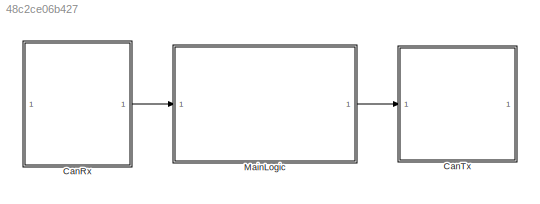
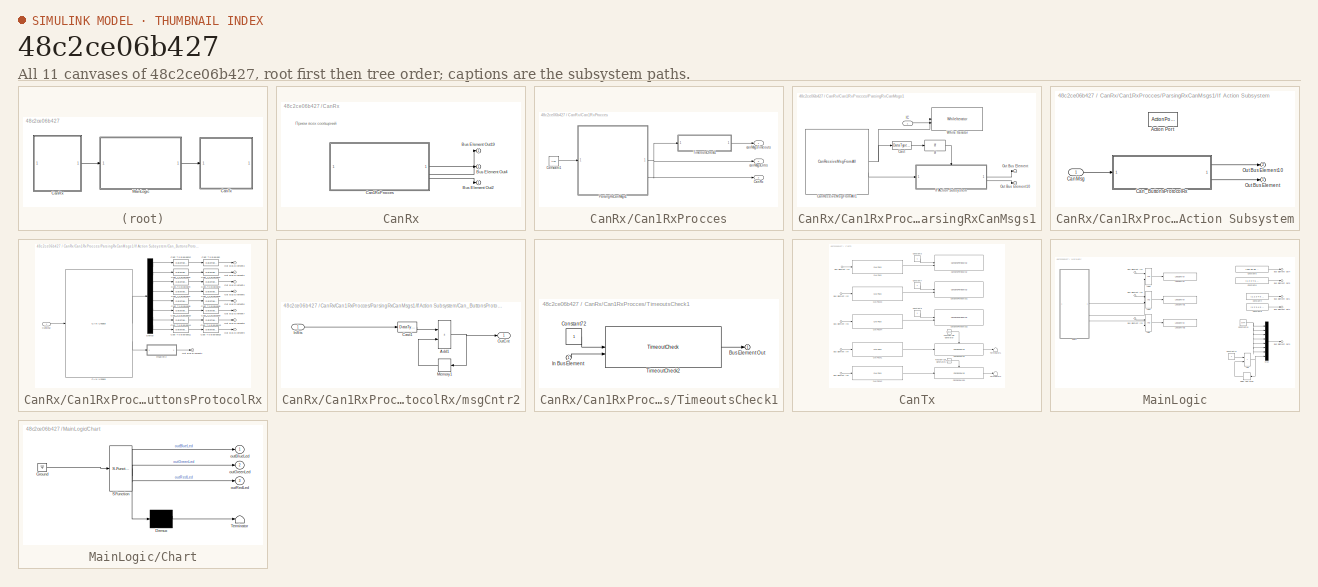
[diagram: thumbnail index - all 11 canvases of the model, root first then tree order]
MODEL slx_48c2ce06b427
KIND model
CONFIG AbsTol = auto
CONFIG EnableMultiTasking = off
CONFIG FixedStep = 0.01
CONFIG MaxStep = auto
CONFIG MinStep = auto
CONFIG RelTol = 1e-3
CONFIG SampleTimeConstraint = Unconstrained
CONFIG SolverName = FixedStepDiscrete
CONFIG StartTime = 0.0
CONFIG StopTime = 10.0
WORKSPACE source: mxarray member
WORKSPACE BlueSwitch: Simulink.Parameter (value not decoded)
WORKSPACE GreenSwitch: Simulink.Parameter (value not decoded)
WORKSPACE RedSwitch: Simulink.Parameter (value not decoded)
BLOCK [SubSystem] CanRx
  SystemSampleTime = 0.01
  TreatAsAtomicUnit = on
BLOCK [Outport] CanRx/Bus Element Out19
BLOCK [Outport] CanRx/Bus Element Out2
BLOCK [Outport] CanRx/Bus Element Out4
BLOCK [SubSystem] CanRx/Can1RxProcces
BLOCK [Outport] CanRx/Can1RxProcces/CanRx
  Port = 2
BLOCK [Constant] CanRx/Can1RxProcces/Constant1
  OutDataTypeStr = boolean
  Value = true
BLOCK [SubSystem] CanRx/Can1RxProcces/ParsingRxCanMsgs1
  TreatAsAtomicUnit = on
BLOCK [DataTypeConversion] CanRx/Can1RxProcces/ParsingRxCanMsgs1/Cast
  OutDataTypeStr = uint8
  RndMeth = Simplest
  SaturateOnIntegerOverflow = off
BLOCK [Inport] CanRx/Can1RxProcces/ParsingRxCanMsgs1/IC
BLOCK [If] CanRx/Can1RxProcces/ParsingRxCanMsgs1/If
  ShowElse = off
BLOCK [SubSystem] CanRx/Can1RxProcces/ParsingRxCanMsgs1/If Action Subsystem
  TreatAsAtomicUnit = on
BLOCK [ActionPort] CanRx/Can1RxProcces/ParsingRxCanMsgs1/If Action Subsystem/Action Port
  ActionPortLabel = if(u1 > 0)
BLOCK [Inport] CanRx/Can1RxProcces/ParsingRxCanMsgs1/If Action Subsystem/CanMsg
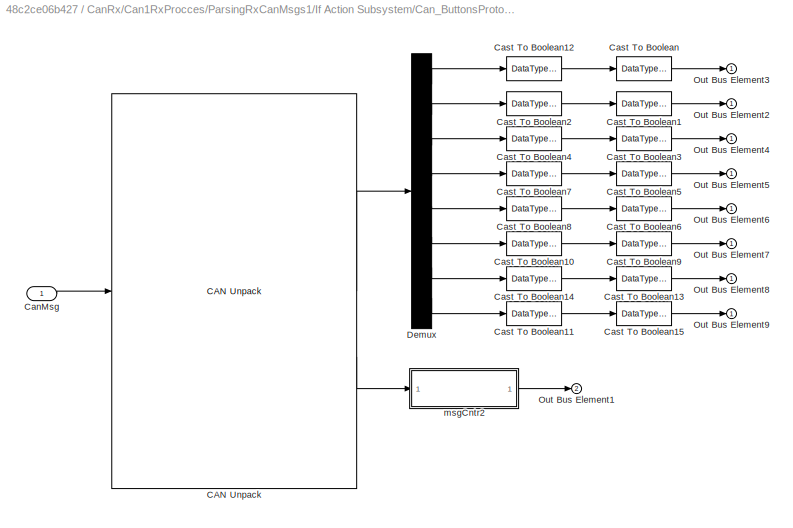
BLOCK [SubSystem] CanRx/Can1RxProcces/ParsingRxCanMsgs1/If Action Subsystem/Can_ButtonsProtocolRx
BLOCK [Reference] CanRx/Can1RxProcces/ParsingRxCanMsgs1/If Action Subsystem/Can_ButtonsProtocolRx/CAN Unpack  REF=canmsglib/CAN Unpack
  LibrarySourceBlock = embeddedtargetslib/Host Communication/CAN Unpack
  SourceBlock = canmsglib/CAN Unpack
  SourceType = CAN Unpack
BLOCK [Inport] CanRx/Can1RxProcces/ParsingRxCanMsgs1/If Action Subsystem/Can_ButtonsProtocolRx/CanMsg
BLOCK [DataTypeConversion] CanRx/Can1RxProcces/ParsingRxCanMsgs1/If Action Subsystem/Can_ButtonsProtocolRx/Cast To Boolean
  OutDataTypeStr = boolean
  RndMeth = Simplest
  SaturateOnIntegerOverflow = off
BLOCK [DataTypeConversion] CanRx/Can1RxProcces/ParsingRxCanMsgs1/If Action Subsystem/Can_ButtonsProtocolRx/Cast To Boolean1
  OutDataTypeStr = boolean
  RndMeth = Simplest
  SaturateOnIntegerOverflow = off
BLOCK [DataTypeConversion] CanRx/Can1RxProcces/ParsingRxCanMsgs1/If Action Subsystem/Can_ButtonsProtocolRx/Cast To Boolean10
  OutDataTypeStr = uint8
  RndMeth = Simplest
  SaturateOnIntegerOverflow = off
BLOCK [DataTypeConversion] CanRx/Can1RxProcces/ParsingRxCanMsgs1/If Action Subsystem/Can_ButtonsProtocolRx/Cast To Boolean11
  OutDataTypeStr = uint8
  RndMeth = Simplest
  SaturateOnIntegerOverflow = off
BLOCK [DataTypeConversion] CanRx/Can1RxProcces/ParsingRxCanMsgs1/If Action Subsystem/Can_ButtonsProtocolRx/Cast To Boolean12
  OutDataTypeStr = uint8
  RndMeth = Simplest
  SaturateOnIntegerOverflow = off
BLOCK [DataTypeConversion] CanRx/Can1RxProcces/ParsingRxCanMsgs1/If Action Subsystem/Can_ButtonsProtocolRx/Cast To Boolean13
  OutDataTypeStr = boolean
  RndMeth = Simplest
  SaturateOnIntegerOverflow = off
BLOCK [DataTypeConversion] CanRx/Can1RxProcces/ParsingRxCanMsgs1/If Action Subsystem/Can_ButtonsProtocolRx/Cast To Boolean14
  OutDataTypeStr = uint8
  RndMeth = Simplest
  SaturateOnIntegerOverflow = off
BLOCK [DataTypeConversion] CanRx/Can1RxProcces/ParsingRxCanMsgs1/If Action Subsystem/Can_ButtonsProtocolRx/Cast To Boolean15
  OutDataTypeStr = boolean
  RndMeth = Simplest
  SaturateOnIntegerOverflow = off
BLOCK [DataTypeConversion] CanRx/Can1RxProcces/ParsingRxCanMsgs1/If Action Subsystem/Can_ButtonsProtocolRx/Cast To Boolean2
  OutDataTypeStr = uint8
  RndMeth = Simplest
  SaturateOnIntegerOverflow = off
BLOCK [DataTypeConversion] CanRx/Can1RxProcces/ParsingRxCanMsgs1/If Action Subsystem/Can_ButtonsProtocolRx/Cast To Boolean3
  OutDataTypeStr = boolean
  RndMeth = Simplest
  SaturateOnIntegerOverflow = off
BLOCK [DataTypeConversion] CanRx/Can1RxProcces/ParsingRxCanMsgs1/If Action Subsystem/Can_ButtonsProtocolRx/Cast To Boolean4
  OutDataTypeStr = uint8
  RndMeth = Simplest
  SaturateOnIntegerOverflow = off
BLOCK [DataTypeConversion] CanRx/Can1RxProcces/ParsingRxCanMsgs1/If Action Subsystem/Can_ButtonsProtocolRx/Cast To Boolean5
  OutDataTypeStr = boolean
  RndMeth = Simplest
  SaturateOnIntegerOverflow = off
BLOCK [DataTypeConversion] CanRx/Can1RxProcces/ParsingRxCanMsgs1/If Action Subsystem/Can_ButtonsProtocolRx/Cast To Boolean6
  OutDataTypeStr = boolean
  RndMeth = Simplest
  SaturateOnIntegerOverflow = off
BLOCK [DataTypeConversion] CanRx/Can1RxProcces/ParsingRxCanMsgs1/If Action Subsystem/Can_ButtonsProtocolRx/Cast To Boolean7
  OutDataTypeStr = uint8
  RndMeth = Simplest
  SaturateOnIntegerOverflow = off
BLOCK [DataTypeConversion] CanRx/Can1RxProcces/ParsingRxCanMsgs1/If Action Subsystem/Can_ButtonsProtocolRx/Cast To Boolean8
  OutDataTypeStr = uint8
  RndMeth = Simplest
  SaturateOnIntegerOverflow = off
BLOCK [DataTypeConversion] CanRx/Can1RxProcces/ParsingRxCanMsgs1/If Action Subsystem/Can_ButtonsProtocolRx/Cast To Boolean9
  OutDataTypeStr = boolean
  RndMeth = Simplest
  SaturateOnIntegerOverflow = off
BLOCK [Demux] CanRx/Can1RxProcces/ParsingRxCanMsgs1/If Action Subsystem/Can_ButtonsProtocolRx/Demux
  Outputs = 8
BLOCK [Outport] CanRx/Can1RxProcces/ParsingRxCanMsgs1/If Action Subsystem/Can_ButtonsProtocolRx/Out Bus Element1
  Port = 2
BLOCK [Outport] CanRx/Can1RxProcces/ParsingRxCanMsgs1/If Action Subsystem/Can_ButtonsProtocolRx/Out Bus Element2
BLOCK [Outport] CanRx/Can1RxProcces/ParsingRxCanMsgs1/If Action Subsystem/Can_ButtonsProtocolRx/Out Bus Element3
BLOCK [Outport] CanRx/Can1RxProcces/ParsingRxCanMsgs1/If Action Subsystem/Can_ButtonsProtocolRx/Out Bus Element4
BLOCK [Outport] CanRx/Can1RxProcces/ParsingRxCanMsgs1/If Action Subsystem/Can_ButtonsProtocolRx/Out Bus Element5
BLOCK [Outport] CanRx/Can1RxProcces/ParsingRxCanMsgs1/If Action Subsystem/Can_ButtonsProtocolRx/Out Bus Element6
BLOCK [Outport] CanRx/Can1RxProcces/ParsingRxCanMsgs1/If Action Subsystem/Can_ButtonsProtocolRx/Out Bus Element7
BLOCK [Outport] CanRx/Can1RxProcces/ParsingRxCanMsgs1/If Action Subsystem/Can_ButtonsProtocolRx/Out Bus Element8
BLOCK [Outport] CanRx/Can1RxProcces/ParsingRxCanMsgs1/If Action Subsystem/Can_ButtonsProtocolRx/Out Bus Element9
BLOCK [SubSystem] CanRx/Can1RxProcces/ParsingRxCanMsgs1/If Action Subsystem/Can_ButtonsProtocolRx/msgCntr2
BLOCK [Sum] CanRx/Can1RxProcces/ParsingRxCanMsgs1/If Action Subsystem/Can_ButtonsProtocolRx/msgCntr2/Add1
  AccumDataTypeStr = uint32
  IconShape = rectangular
  OutDataTypeStr = uint32
  RndMeth = Simplest
BLOCK [DataTypeConversion] CanRx/Can1RxProcces/ParsingRxCanMsgs1/If Action Subsystem/Can_ButtonsProtocolRx/msgCntr2/Cast1
  OutDataTypeStr = uint32
  RndMeth = Simplest
  SaturateOnIntegerOverflow = off
BLOCK [Inport] CanRx/Can1RxProcces/ParsingRxCanMsgs1/If Action Subsystem/Can_ButtonsProtocolRx/msgCntr2/InSts
BLOCK [Memory] CanRx/Can1RxProcces/ParsingRxCanMsgs1/If Action Subsystem/Can_ButtonsProtocolRx/msgCntr2/Memory1
  InheritSampleTime = on
  NameLocation = top
BLOCK [Outport] CanRx/Can1RxProcces/ParsingRxCanMsgs1/If Action Subsystem/Can_ButtonsProtocolRx/msgCntr2/OutCnt
BLOCK [Outport] CanRx/Can1RxProcces/ParsingRxCanMsgs1/If Action Subsystem/Out Bus Element
BLOCK [Outport] CanRx/Can1RxProcces/ParsingRxCanMsgs1/If Action Subsystem/Out Bus Element10
  Port = 2
BLOCK [Outport] CanRx/Can1RxProcces/ParsingRxCanMsgs1/Out Bus Element
BLOCK [Outport] CanRx/Can1RxProcces/ParsingRxCanMsgs1/Out Bus Element10
  Port = 2
BLOCK [WhileIterator] CanRx/Can1RxProcces/ParsingRxCanMsgs1/While Iterator
  MaxIters = 50
BLOCK [Reference] CanRx/Can1RxProcces/ParsingRxCanMsgs1/СanReceiveMsgFromAll1  REF=can_control/СanReceiveMsgFromAll  (lib defined in slx_4efd21c621b9)
  SourceBlock = can_control/СanReceiveMsgFromAll
  SourceType = Получить сообщений из кольцевого буффера CAN
BLOCK [SubSystem] CanRx/Can1RxProcces/TimeoutsCheck1
BLOCK [Outport] CanRx/Can1RxProcces/TimeoutsCheck1/Bus Element Out
BLOCK [Constant] CanRx/Can1RxProcces/TimeoutsCheck1/Constant72
  OutDataTypeStr = boolean
BLOCK [Inport] CanRx/Can1RxProcces/TimeoutsCheck1/In Bus Element
BLOCK [Reference] CanRx/Can1RxProcces/TimeoutsCheck1/TimeoutCheck2  REF=can_control/TimeoutCheck  (lib defined in slx_4efd21c621b9)
  SourceBlock = can_control/TimeoutCheck
  SourceType = Check TimeOut
BLOCK [Outport] CanRx/Can1RxProcces/canMsgsCntrs
  Port = 3
BLOCK [Outport] CanRx/Can1RxProcces/canMsgsTimeouts
BLOCK [SubSystem] CanTx
  TreatAsAtomicUnit = on
BLOCK [Inport] CanTx/Bus Element In1
BLOCK [Inport] CanTx/Bus Element In2
BLOCK [Inport] CanTx/Bus Element In3
BLOCK [Inport] CanTx/Bus Element In4
BLOCK [Inport] CanTx/Bus Element In5
BLOCK [Reference] CanTx/CAN Pack  REF=canmsglib/CAN Pack
  LibrarySourceBlock = embeddedtargetslib/Host Communication/CAN Pack
  SourceBlock = canmsglib/CAN Pack
  SourceType = CAN Pack
BLOCK [Reference] CanTx/CAN Pack1  REF=canmsglib/CAN Pack
  LibrarySourceBlock = embeddedtargetslib/Host Communication/CAN Pack
  SourceBlock = canmsglib/CAN Pack
  SourceType = CAN Pack
BLOCK [Reference] CanTx/CAN Pack2  REF=canmsglib/CAN Pack
  LibrarySourceBlock = embeddedtargetslib/Host Communication/CAN Pack
  SourceBlock = canmsglib/CAN Pack
  SourceType = CAN Pack
BLOCK [Reference] CanTx/CAN Pack3  REF=canmsglib/CAN Pack
  LibrarySourceBlock = embeddedtargetslib/Host Communication/CAN Pack
  SourceBlock = canmsglib/CAN Pack
  SourceType = CAN Pack
BLOCK [Reference] CanTx/CAN Pack4  REF=canmsglib/CAN Pack
  LibrarySourceBlock = embeddedtargetslib/Host Communication/CAN Pack
  SourceBlock = canmsglib/CAN Pack
  SourceType = CAN Pack
BLOCK [Constant] CanTx/Constant3
  OutDataTypeStr = boolean
BLOCK [Constant] CanTx/Constant7
  OutDataTypeStr = boolean
BLOCK [Constant] CanTx/Constant9
  OutDataTypeStr = boolean
BLOCK [Reference] CanTx/Function-Call Generator  REF=simulink/Ports &
Subsystems/Function-Call
Generator
  SourceBlock = simulink/Ports &\nSubsystems/Function-Call\nGenerator
  SourceType = Function-Call Generator
BLOCK [Reference] CanTx/Function-Call Generator1  REF=simulink/Ports &
Subsystems/Function-Call
Generator
  SourceBlock = simulink/Ports &\nSubsystems/Function-Call\nGenerator
  SourceType = Function-Call Generator
BLOCK [Terminator] CanTx/Terminator1
BLOCK [Terminator] CanTx/Terminator2
BLOCK [Reference] CanTx/СanSendMsg  REF=can_control/СanSendMsg  (lib defined in slx_4efd21c621b9)
  SourceBlock = can_control/СanSendMsg
  SourceType = Отправка сообщения CAN
BLOCK [Reference] CanTx/СanSendMsg1  REF=can_control/СanSendMsg  (lib defined in slx_4efd21c621b9)
  SourceBlock = can_control/СanSendMsg
  SourceType = Отправка сообщения CAN
BLOCK [Reference] CanTx/СanSendPeriodMsg  REF=can_control/СanSendPeriodMsg  (lib defined in slx_4efd21c621b9)
  SourceBlock = can_control/СanSendPeriodMsg
  SourceType = CanSend
BLOCK [Reference] CanTx/СanSendPeriodMsg1  REF=can_control/СanSendPeriodMsg  (lib defined in slx_4efd21c621b9)
  SourceBlock = can_control/СanSendPeriodMsg
  SourceType = CanSend
BLOCK [Reference] CanTx/СanSendPeriodMsg2  REF=can_control/СanSendPeriodMsg  (lib defined in slx_4efd21c621b9)
  SourceBlock = can_control/СanSendPeriodMsg
  SourceType = CanSend
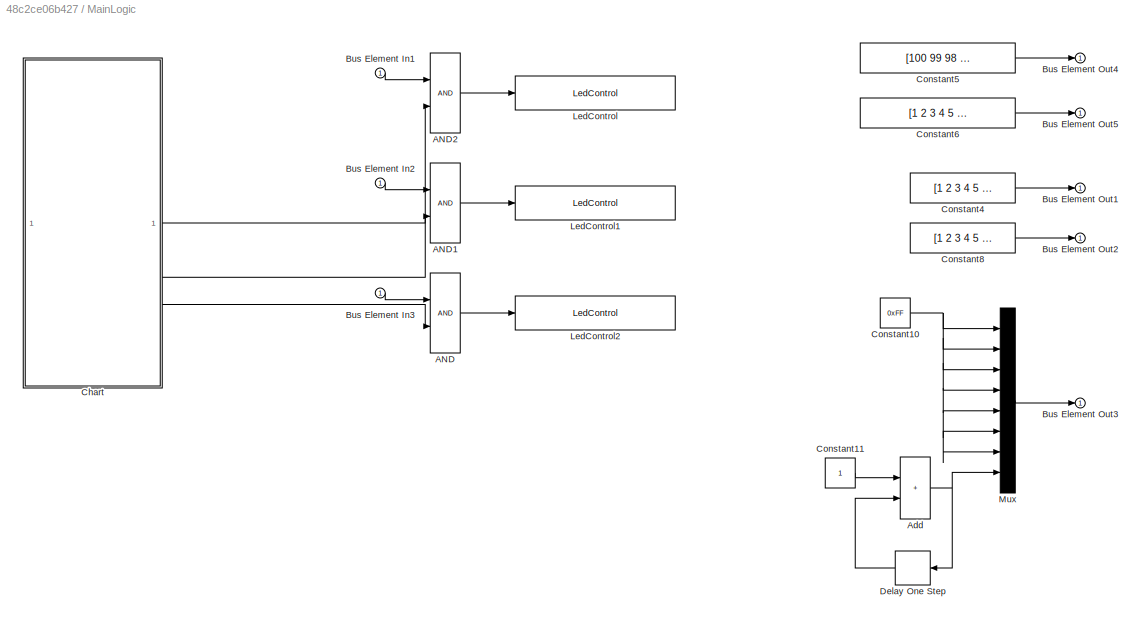
BLOCK [SubSystem] MainLogic
  RTWSystemCode = Inline
  TreatAsAtomicUnit = on
BLOCK [Logic] MainLogic/AND
  AllPortsSameDT = off
  OutDataTypeStr = boolean
BLOCK [Logic] MainLogic/AND1
  AllPortsSameDT = off
  OutDataTypeStr = boolean
BLOCK [Logic] MainLogic/AND2
  AllPortsSameDT = off
  OutDataTypeStr = boolean
BLOCK [Sum] MainLogic/Add
  AccumDataTypeStr = uint8
  IconShape = rectangular
  RndMeth = Simplest
BLOCK [Inport] MainLogic/Bus Element In1
BLOCK [Inport] MainLogic/Bus Element In2
BLOCK [Inport] MainLogic/Bus Element In3
BLOCK [Outport] MainLogic/Bus Element Out1
BLOCK [Outport] MainLogic/Bus Element Out2
BLOCK [Outport] MainLogic/Bus Element Out3
BLOCK [Outport] MainLogic/Bus Element Out4
BLOCK [Outport] MainLogic/Bus Element Out5
BLOCK [SubSystem] MainLogic/Chart
  ErrorFcn = Stateflow.Translate.translate
  PermitHierarchicalResolution = ExplicitOnly
  SFBlockType = Chart
  TreatAsAtomicUnit = on
BLOCK [Demux] MainLogic/Chart/ Demux 
  Outputs = 1
BLOCK [Ground] MainLogic/Chart/ Ground 
BLOCK [S-Function] MainLogic/Chart/ SFunction 
  EnableBusSupport = on
  FunctionName = sf_sfun
  PortCounts = [1 4]
  SFcnIsStateOwnerBlock = off
  SFunctionDeploymentMode = off
  Tag = Stateflow S-Function 3
BLOCK [Terminator] MainLogic/Chart/ Terminator 
BLOCK [Outport] MainLogic/Chart/outBlueLed
BLOCK [Outport] MainLogic/Chart/outGreenLed
  Port = 2
BLOCK [Outport] MainLogic/Chart/outRedLed
  Port = 3
BLOCK [Constant] MainLogic/Constant10
  OutDataTypeStr = uint8
  Value = 0xFF
BLOCK [Constant] MainLogic/Constant11
  OutDataTypeStr = uint8
BLOCK [Constant] MainLogic/Constant4
  OutDataTypeStr = uint8
  Value = [1 2 3 4 5 6 7 8]
BLOCK [Constant] MainLogic/Constant5
  OutDataTypeStr = uint8
  Value = [100 99 98 97 96 95 94 93]
BLOCK [Constant] MainLogic/Constant6
  OutDataTypeStr = uint8
  Value = [1 2 3 4 5 6 7 8]
BLOCK [Constant] MainLogic/Constant8
  OutDataTypeStr = uint8
  Value = [1 2 3 4 5 6 7 8]
BLOCK [Delay] MainLogic/Delay One Step
  DelayLength = 1
  InitialCondition = 0
  InputPortMap = u0
  NameLocation = top
BLOCK [Reference] MainLogic/LedControl  REF=led_control/LedControl  (lib defined in slx_23a28a6f2ab0)
  SourceBlock = led_control/LedControl
BLOCK [Reference] MainLogic/LedControl1  REF=led_control/LedControl  (lib defined in slx_23a28a6f2ab0)
  SourceBlock = led_control/LedControl
BLOCK [Reference] MainLogic/LedControl2  REF=led_control/LedControl  (lib defined in slx_23a28a6f2ab0)
  SourceBlock = led_control/LedControl
BLOCK [Mux] MainLogic/Mux
  DisplayOption = bar
  Inputs = 8
ANNOTATION CanRx: Прием всех сообщений
LINE CanRx/Can1RxProcces/Constant1:1 -> CanRx/Can1RxProcces/ParsingRxCanMsgs1:1
LINE CanRx/Can1RxProcces/ParsingRxCanMsgs1/Cast:1 -> CanRx/Can1RxProcces/ParsingRxCanMsgs1/If:1
LINE CanRx/Can1RxProcces/ParsingRxCanMsgs1/IC:1 -> CanRx/Can1RxProcces/ParsingRxCanMsgs1/While Iterator:2
LINE CanRx/Can1RxProcces/ParsingRxCanMsgs1/If Action Subsystem/CanMsg:1 -> CanRx/Can1RxProcces/ParsingRxCanMsgs1/If Action Subsystem/Can_ButtonsProtocolRx:1
LINE CanRx/Can1RxProcces/ParsingRxCanMsgs1/If Action Subsystem/Can_ButtonsProtocolRx/CAN Unpack:1 -> CanRx/Can1RxProcces/ParsingRxCanMsgs1/If Action Subsystem/Can_ButtonsProtocolRx/Demux:1
LINE CanRx/Can1RxProcces/ParsingRxCanMsgs1/If Action Subsystem/Can_ButtonsProtocolRx/CAN Unpack:2 -> CanRx/Can1RxProcces/ParsingRxCanMsgs1/If Action Subsystem/Can_ButtonsProtocolRx/msgCntr2:1
LINE CanRx/Can1RxProcces/ParsingRxCanMsgs1/If Action Subsystem/Can_ButtonsProtocolRx/CanMsg:1 -> CanRx/Can1RxProcces/ParsingRxCanMsgs1/If Action Subsystem/Can_ButtonsProtocolRx/CAN Unpack:1
LINE CanRx/Can1RxProcces/ParsingRxCanMsgs1/If Action Subsystem/Can_ButtonsProtocolRx/Cast To Boolean10:1 -> CanRx/Can1RxProcces/ParsingRxCanMsgs1/If Action Subsystem/Can_ButtonsProtocolRx/Cast To Boolean9:1
LINE CanRx/Can1RxProcces/ParsingRxCanMsgs1/If Action Subsystem/Can_ButtonsProtocolRx/Cast To Boolean11:1 -> CanRx/Can1RxProcces/ParsingRxCanMsgs1/If Action Subsystem/Can_ButtonsProtocolRx/Cast To Boolean15:1
LINE CanRx/Can1RxProcces/ParsingRxCanMsgs1/If Action Subsystem/Can_ButtonsProtocolRx/Cast To Boolean12:1 -> CanRx/Can1RxProcces/ParsingRxCanMsgs1/If Action Subsystem/Can_ButtonsProtocolRx/Cast To Boolean:1
LINE CanRx/Can1RxProcces/ParsingRxCanMsgs1/If Action Subsystem/Can_ButtonsProtocolRx/Cast To Boolean13:1 -> CanRx/Can1RxProcces/ParsingRxCanMsgs1/If Action Subsystem/Can_ButtonsProtocolRx/Out Bus Element8:1
LINE CanRx/Can1RxProcces/ParsingRxCanMsgs1/If Action Subsystem/Can_ButtonsProtocolRx/Cast To Boolean14:1 -> CanRx/Can1RxProcces/ParsingRxCanMsgs1/If Action Subsystem/Can_ButtonsProtocolRx/Cast To Boolean13:1
LINE CanRx/Can1RxProcces/ParsingRxCanMsgs1/If Action Subsystem/Can_ButtonsProtocolRx/Cast To Boolean15:1 -> CanRx/Can1RxProcces/ParsingRxCanMsgs1/If Action Subsystem/Can_ButtonsProtocolRx/Out Bus Element9:1
LINE CanRx/Can1RxProcces/ParsingRxCanMsgs1/If Action Subsystem/Can_ButtonsProtocolRx/Cast To Boolean1:1 -> CanRx/Can1RxProcces/ParsingRxCanMsgs1/If Action Subsystem/Can_ButtonsProtocolRx/Out Bus Element2:1
LINE CanRx/Can1RxProcces/ParsingRxCanMsgs1/If Action Subsystem/Can_ButtonsProtocolRx/Cast To Boolean2:1 -> CanRx/Can1RxProcces/ParsingRxCanMsgs1/If Action Subsystem/Can_ButtonsProtocolRx/Cast To Boolean1:1
LINE CanRx/Can1RxProcces/ParsingRxCanMsgs1/If Action Subsystem/Can_ButtonsProtocolRx/Cast To Boolean3:1 -> CanRx/Can1RxProcces/ParsingRxCanMsgs1/If Action Subsystem/Can_ButtonsProtocolRx/Out Bus Element4:1
LINE CanRx/Can1RxProcces/ParsingRxCanMsgs1/If Action Subsystem/Can_ButtonsProtocolRx/Cast To Boolean4:1 -> CanRx/Can1RxProcces/ParsingRxCanMsgs1/If Action Subsystem/Can_ButtonsProtocolRx/Cast To Boolean3:1
LINE CanRx/Can1RxProcces/ParsingRxCanMsgs1/If Action Subsystem/Can_ButtonsProtocolRx/Cast To Boolean5:1 -> CanRx/Can1RxProcces/ParsingRxCanMsgs1/If Action Subsystem/Can_ButtonsProtocolRx/Out Bus Element5:1
LINE CanRx/Can1RxProcces/ParsingRxCanMsgs1/If Action Subsystem/Can_ButtonsProtocolRx/Cast To Boolean6:1 -> CanRx/Can1RxProcces/ParsingRxCanMsgs1/If Action Subsystem/Can_ButtonsProtocolRx/Out Bus Element6:1
LINE CanRx/Can1RxProcces/ParsingRxCanMsgs1/If Action Subsystem/Can_ButtonsProtocolRx/Cast To Boolean7:1 -> CanRx/Can1RxProcces/ParsingRxCanMsgs1/If Action Subsystem/Can_ButtonsProtocolRx/Cast To Boolean5:1
LINE CanRx/Can1RxProcces/ParsingRxCanMsgs1/If Action Subsystem/Can_ButtonsProtocolRx/Cast To Boolean8:1 -> CanRx/Can1RxProcces/ParsingRxCanMsgs1/If Action Subsystem/Can_ButtonsProtocolRx/Cast To Boolean6:1
LINE CanRx/Can1RxProcces/ParsingRxCanMsgs1/If Action Subsystem/Can_ButtonsProtocolRx/Cast To Boolean9:1 -> CanRx/Can1RxProcces/ParsingRxCanMsgs1/If Action Subsystem/Can_ButtonsProtocolRx/Out Bus Element7:1
LINE CanRx/Can1RxProcces/ParsingRxCanMsgs1/If Action Subsystem/Can_ButtonsProtocolRx/Cast To Boolean:1 -> CanRx/Can1RxProcces/ParsingRxCanMsgs1/If Action Subsystem/Can_ButtonsProtocolRx/Out Bus Element3:1
LINE CanRx/Can1RxProcces/ParsingRxCanMsgs1/If Action Subsystem/Can_ButtonsProtocolRx/Demux:1 -> CanRx/Can1RxProcces/ParsingRxCanMsgs1/If Action Subsystem/Can_ButtonsProtocolRx/Cast To Boolean12:1
LINE CanRx/Can1RxProcces/ParsingRxCanMsgs1/If Action Subsystem/Can_ButtonsProtocolRx/Demux:2 -> CanRx/Can1RxProcces/ParsingRxCanMsgs1/If Action Subsystem/Can_ButtonsProtocolRx/Cast To Boolean2:1
LINE CanRx/Can1RxProcces/ParsingRxCanMsgs1/If Action Subsystem/Can_ButtonsProtocolRx/Demux:3 -> CanRx/Can1RxProcces/ParsingRxCanMsgs1/If Action Subsystem/Can_ButtonsProtocolRx/Cast To Boolean4:1
LINE CanRx/Can1RxProcces/ParsingRxCanMsgs1/If Action Subsystem/Can_ButtonsProtocolRx/Demux:4 -> CanRx/Can1RxProcces/ParsingRxCanMsgs1/If Action Subsystem/Can_ButtonsProtocolRx/Cast To Boolean7:1
LINE CanRx/Can1RxProcces/ParsingRxCanMsgs1/If Action Subsystem/Can_ButtonsProtocolRx/Demux:5 -> CanRx/Can1RxProcces/ParsingRxCanMsgs1/If Action Subsystem/Can_ButtonsProtocolRx/Cast To Boolean8:1
LINE CanRx/Can1RxProcces/ParsingRxCanMsgs1/If Action Subsystem/Can_ButtonsProtocolRx/Demux:6 -> CanRx/Can1RxProcces/ParsingRxCanMsgs1/If Action Subsystem/Can_ButtonsProtocolRx/Cast To Boolean10:1
LINE CanRx/Can1RxProcces/ParsingRxCanMsgs1/If Action Subsystem/Can_ButtonsProtocolRx/Demux:7 -> CanRx/Can1RxProcces/ParsingRxCanMsgs1/If Action Subsystem/Can_ButtonsProtocolRx/Cast To Boolean14:1
LINE CanRx/Can1RxProcces/ParsingRxCanMsgs1/If Action Subsystem/Can_ButtonsProtocolRx/Demux:8 -> CanRx/Can1RxProcces/ParsingRxCanMsgs1/If Action Subsystem/Can_ButtonsProtocolRx/Cast To Boolean11:1
NET CanRx/Can1RxProcces/ParsingRxCanMsgs1/If Action Subsystem/Can_ButtonsProtocolRx/msgCntr2/Add1:1 -> CanRx/Can1RxProcces/ParsingRxCanMsgs1/If Action Subsystem/Can_ButtonsProtocolRx/msgCntr2/Memory1:1, CanRx/Can1RxProcces/ParsingRxCanMsgs1/If Action Subsystem/Can_ButtonsProtocolRx/msgCntr2/OutCnt:1
LINE CanRx/Can1RxProcces/ParsingRxCanMsgs1/If Action Subsystem/Can_ButtonsProtocolRx/msgCntr2/Cast1:1 -> CanRx/Can1RxProcces/ParsingRxCanMsgs1/If Action Subsystem/Can_ButtonsProtocolRx/msgCntr2/Add1:1
LINE CanRx/Can1RxProcces/ParsingRxCanMsgs1/If Action Subsystem/Can_ButtonsProtocolRx/msgCntr2/InSts:1 -> CanRx/Can1RxProcces/ParsingRxCanMsgs1/If Action Subsystem/Can_ButtonsProtocolRx/msgCntr2/Cast1:1
LINE CanRx/Can1RxProcces/ParsingRxCanMsgs1/If Action Subsystem/Can_ButtonsProtocolRx/msgCntr2/Memory1:1 -> CanRx/Can1RxProcces/ParsingRxCanMsgs1/If Action Subsystem/Can_ButtonsProtocolRx/msgCntr2/Add1:2
LINE CanRx/Can1RxProcces/ParsingRxCanMsgs1/If Action Subsystem/Can_ButtonsProtocolRx/msgCntr2:1 -> CanRx/Can1RxProcces/ParsingRxCanMsgs1/If Action Subsystem/Can_ButtonsProtocolRx/Out Bus Element1:1
LINE CanRx/Can1RxProcces/ParsingRxCanMsgs1/If Action Subsystem/Can_ButtonsProtocolRx:1 -> CanRx/Can1RxProcces/ParsingRxCanMsgs1/If Action Subsystem/Out Bus Element10:1
LINE CanRx/Can1RxProcces/ParsingRxCanMsgs1/If Action Subsystem/Can_ButtonsProtocolRx:2 -> CanRx/Can1RxProcces/ParsingRxCanMsgs1/If Action Subsystem/Out Bus Element:1
LINE CanRx/Can1RxProcces/ParsingRxCanMsgs1/If Action Subsystem:1 -> CanRx/Can1RxProcces/ParsingRxCanMsgs1/Out Bus Element:1
LINE CanRx/Can1RxProcces/ParsingRxCanMsgs1/If Action Subsystem:2 -> CanRx/Can1RxProcces/ParsingRxCanMsgs1/Out Bus Element10:1
LINE CanRx/Can1RxProcces/ParsingRxCanMsgs1/If:1 -> CanRx/Can1RxProcces/ParsingRxCanMsgs1/If Action Subsystem:ifaction
NET CanRx/Can1RxProcces/ParsingRxCanMsgs1/СanReceiveMsgFromAll1:1 -> CanRx/Can1RxProcces/ParsingRxCanMsgs1/Cast:1, CanRx/Can1RxProcces/ParsingRxCanMsgs1/While Iterator:1
LINE CanRx/Can1RxProcces/ParsingRxCanMsgs1/СanReceiveMsgFromAll1:2 -> CanRx/Can1RxProcces/ParsingRxCanMsgs1/If Action Subsystem:1
NET CanRx/Can1RxProcces/ParsingRxCanMsgs1:1 -> CanRx/Can1RxProcces/TimeoutsCheck1:1, CanRx/Can1RxProcces/canMsgsCntrs:1
LINE CanRx/Can1RxProcces/ParsingRxCanMsgs1:2 -> CanRx/Can1RxProcces/CanRx:1
LINE CanRx/Can1RxProcces/TimeoutsCheck1/Constant72:1 -> CanRx/Can1RxProcces/TimeoutsCheck1/TimeoutCheck2:1
LINE CanRx/Can1RxProcces/TimeoutsCheck1/In Bus Element:1 -> CanRx/Can1RxProcces/TimeoutsCheck1/TimeoutCheck2:2
LINE CanRx/Can1RxProcces/TimeoutsCheck1/TimeoutCheck2:1 -> CanRx/Can1RxProcces/TimeoutsCheck1/Bus Element Out:1
LINE CanRx/Can1RxProcces/TimeoutsCheck1:1 -> CanRx/Can1RxProcces/canMsgsTimeouts:1
LINE CanRx/Can1RxProcces:1 -> CanRx/Bus Element Out19:1
LINE CanRx/Can1RxProcces:2 -> CanRx/Bus Element Out4:1
LINE CanRx/Can1RxProcces:3 -> CanRx/Bus Element Out2:1
LINE CanRx:1 -> MainLogic:1
LINE CanTx/Bus Element In1:1 -> CanTx/CAN Pack:1
LINE CanTx/Bus Element In2:1 -> CanTx/CAN Pack3:1
LINE CanTx/Bus Element In3:1 -> CanTx/CAN Pack4:1
LINE CanTx/Bus Element In4:1 -> CanTx/CAN Pack1:1
LINE CanTx/Bus Element In5:1 -> CanTx/CAN Pack2:1
LINE CanTx/CAN Pack1:1 -> CanTx/СanSendMsg:1
LINE CanTx/CAN Pack2:1 -> CanTx/СanSendMsg1:1
LINE CanTx/CAN Pack3:1 -> CanTx/СanSendPeriodMsg1:2
LINE CanTx/CAN Pack4:1 -> CanTx/СanSendPeriodMsg2:2
LINE CanTx/CAN Pack:1 -> CanTx/СanSendPeriodMsg:2
LINE CanTx/Constant3:1 -> CanTx/СanSendPeriodMsg:1
LINE CanTx/Constant7:1 -> CanTx/СanSendPeriodMsg1:1
LINE CanTx/Constant9:1 -> CanTx/СanSendPeriodMsg2:1
LINE CanTx/Function-Call Generator1:1 -> CanTx/СanSendMsg1:trigger
LINE CanTx/Function-Call Generator:1 -> CanTx/СanSendMsg:trigger
LINE CanTx/СanSendMsg1:1 -> CanTx/Terminator2:1
LINE CanTx/СanSendMsg:1 -> CanTx/Terminator1:1
LINE MainLogic/AND1:1 -> MainLogic/LedControl1:1
LINE MainLogic/AND2:1 -> MainLogic/LedControl:1
LINE MainLogic/AND:1 -> MainLogic/LedControl2:1
NET MainLogic/Add:1 -> MainLogic/Delay One Step:1, MainLogic/Mux:8
LINE MainLogic/Bus Element In1:1 -> MainLogic/AND2:1
LINE MainLogic/Bus Element In2:1 -> MainLogic/AND1:1
LINE MainLogic/Bus Element In3:1 -> MainLogic/AND:1
LINE MainLogic/Chart:1 -> MainLogic/AND2:2
LINE MainLogic/Chart:2 -> MainLogic/AND1:2
LINE MainLogic/Chart:3 -> MainLogic/AND:2
NET MainLogic/Constant10:1 -> MainLogic/Mux:1, MainLogic/Mux:2, MainLogic/Mux:3, MainLogic/Mux:4, MainLogic/Mux:5, MainLogic/Mux:6, MainLogic/Mux:7
LINE MainLogic/Constant11:1 -> MainLogic/Add:1
LINE MainLogic/Constant4:1 -> MainLogic/Bus Element Out1:1
LINE MainLogic/Constant5:1 -> MainLogic/Bus Element Out4:1
LINE MainLogic/Constant6:1 -> MainLogic/Bus Element Out5:1
LINE MainLogic/Constant8:1 -> MainLogic/Bus Element Out2:1
LINE MainLogic/Delay One Step:1 -> MainLogic/Add:2
LINE MainLogic/Mux:1 -> MainLogic/Bus Element Out3:1
LINE MainLogic:1 -> CanTx:1
note: NET lines group one-source signal fan-out (src -> all destinations, sorted); 1:1 wires keep LINE
CHART MainLogic/Chart states=9 transitions=9
  STATE_LABEL 'RED_LED'
  STATE_LABEL 'OFF\nen:\noutRedLed = true;'
  STATE_LABEL 'ON\nen:\noutRedLed = false;'
  STATE_LABEL 'after(100, msec)'
  STATE_LABEL 'after(250, msec)'
  STATE_LABEL 'OFF\nen:\noutRedLed = true;'
  STATE_LABEL 'ON\nen:\noutRedLed = false;'
  STATE_LABEL 'BLUE_LED'
  STATE_LABEL 'OFF\nen:\noutBlueLed = true;'
  STATE_LABEL 'ON\nen:\noutBlueLed = false;'
  STATE_LABEL 'after(500, msec)'
  STATE_LABEL 'after(500, msec)'
  STATE_LABEL 'OFF\nen:\noutBlueLed = true;'
  STATE_LABEL 'ON\nen:\noutBlueLed = false;'
  STATE_LABEL 'GREEN_LED'
  STATE_LABEL 'OFF\nen:\noutGreenLed = true;'
  STATE_LABEL 'ON\nen:\noutGreenLed = false;'
  STATE_LABEL 'after(1000, msec)'
  STATE_LABEL 'after(1000, msec)'
  STATE_LABEL 'OFF\nen:\noutGreenLed = true;'
  STATE_LABEL 'ON\nen:\noutGreenLed = false;'
CHART  states=0 transitions=0
